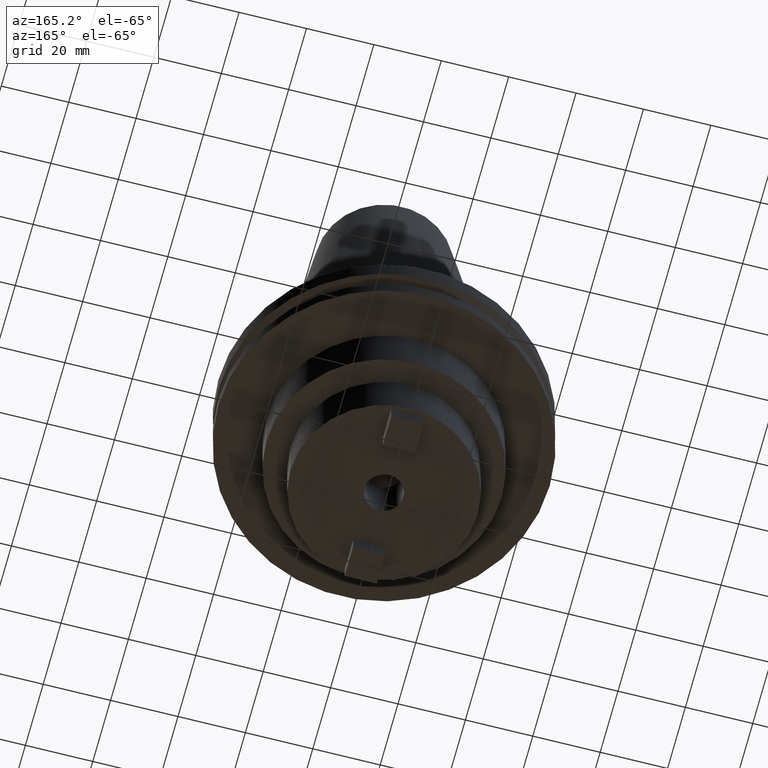
[diagram: clean part render]
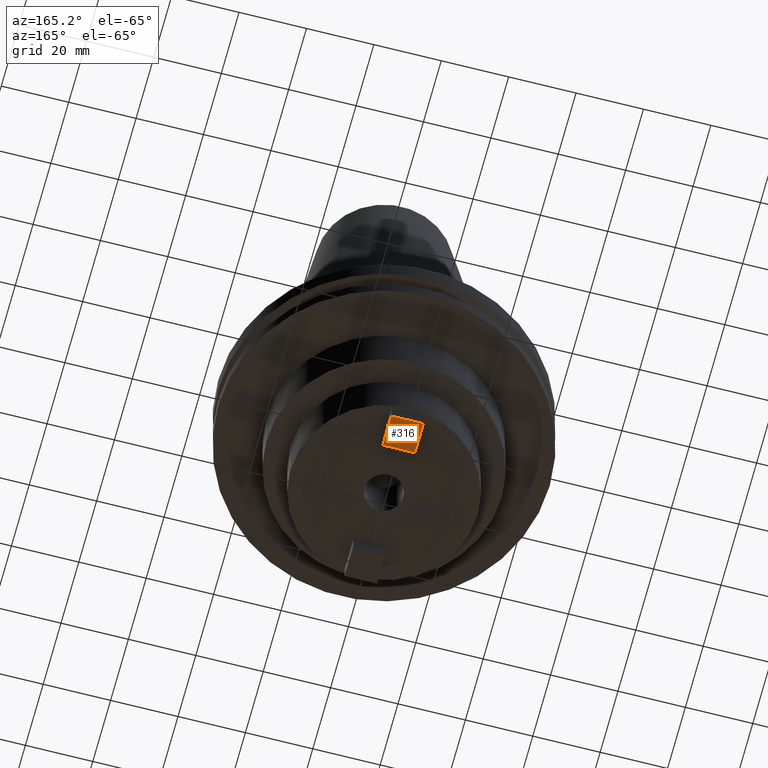
[diagram: same view with one face highlighted and labeled with its STEP entity id]
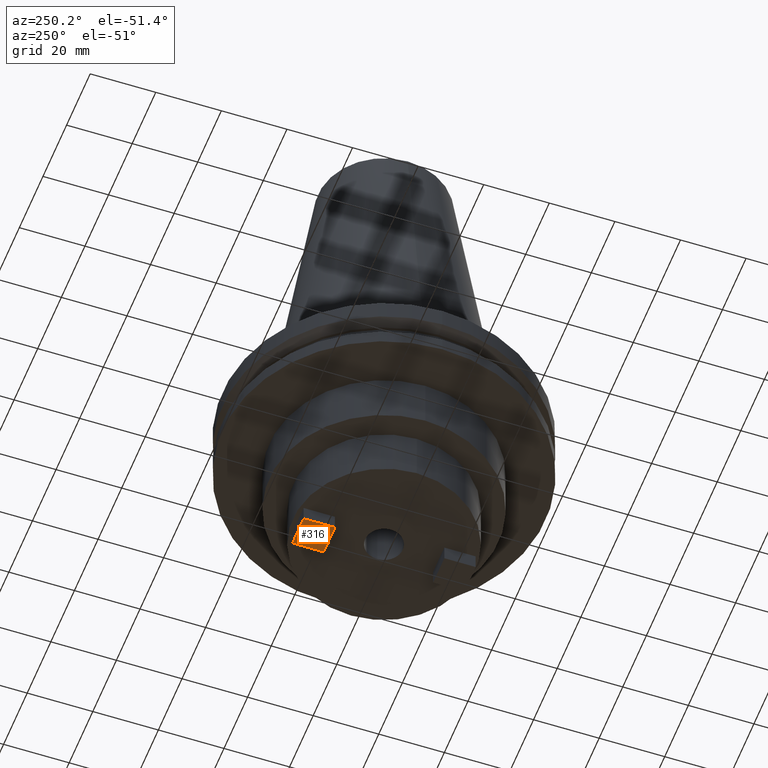
[diagram: same view with one face highlighted and labeled with its STEP entity id]
A machine part, auxiliary view. The second image highlights one B-rep face of the part: STEP entity #316.
A second angle (auxiliary view) of the same face is appended — the face is thin or edge-on in the first view.
In plain terms, the highlighted planar face has unit normal (0, 0, -1).
Its self-contained STEP definition (entity closure, byte-faithful):
#3 = EDGE_LOOP ( 'NONE', ( #956, #121, #147, #791 ) ) ;
#68 = VECTOR ( 'NONE', #242, 1000.000000000000000 ) ;
#71 = EDGE_CURVE ( 'NONE', #453, #524, #940, .T. ) ;
#91 = CARTESIAN_POINT ( 'NONE',  ( -4.762500000000017941, 26.20750000000002089, -55.70000000000000284 ) ) ;
#98 = DIRECTION ( 'NONE',  ( -1.000000000000000000, 3.642463991552348493E-16, 0.000000000000000000 ) ) ;
#104 = CARTESIAN_POINT ( 'NONE',  ( 4.762499999999981526, 26.20750000000001734, -55.70000000000000284 ) ) ;
#121 = ORIENTED_EDGE ( 'NONE', *, *, #394, .T. ) ;
#135 = EDGE_CURVE ( 'NONE', #220, #453, #432, .T. ) ;
#147 = ORIENTED_EDGE ( 'NONE', *, *, #329, .T. ) ;
#175 = VECTOR ( 'NONE', #495, 1000.000000000000000 ) ;
#181 = CARTESIAN_POINT ( 'NONE',  ( 4.762499999999986855, 16.68250000000001876, -55.70000000000000284 ) ) ;
#220 = VERTEX_POINT ( 'NONE', #288 ) ;
#228 = DIRECTION ( 'NONE',  ( -1.000000000000000000, 0.000000000000000000, 0.000000000000000000 ) ) ;
#242 = DIRECTION ( 'NONE',  ( 6.374311985216615162E-16, -1.000000000000000000, 0.000000000000000000 ) ) ;
#288 = CARTESIAN_POINT ( 'NONE',  ( 4.762499999999986855, 16.68250000000001876, -55.70000000000000284 ) ) ;
#301 = DIRECTION ( 'NONE',  ( 0.000000000000000000, 0.000000000000000000, -1.000000000000000000 ) ) ;
#316 = ADVANCED_FACE ( 'NONE', ( #968 ), #387, .T. ) ;
#329 = EDGE_CURVE ( 'NONE', #1063, #220, #452, .T. ) ;
#387 = PLANE ( 'NONE',  #613 ) ;
#394 = EDGE_CURVE ( 'NONE', #524, #1063, #812, .T. ) ;
#409 = VECTOR ( 'NONE', #1030, 1000.000000000000000 ) ;
#432 = LINE ( 'NONE', #181, #536 ) ;
#452 = LINE ( 'NONE', #699, #68 ) ;
#453 = VERTEX_POINT ( 'NONE', #727 ) ;
#495 = DIRECTION ( 'NONE',  ( 1.000000000000000000, -3.642463991552351451E-16, -0.000000000000000000 ) ) ;
#524 = VERTEX_POINT ( 'NONE', #535 ) ;
#535 = CARTESIAN_POINT ( 'NONE',  ( -4.762500000000017941, 26.20750000000002089, -55.70000000000000284 ) ) ;
#536 = VECTOR ( 'NONE', #98, 1000.000000000000000 ) ;
#613 = AXIS2_PLACEMENT_3D ( 'NONE', #973, #301, #228 ) ;
#699 = CARTESIAN_POINT ( 'NONE',  ( 4.762499999999981526, 26.20750000000001734, -55.70000000000000284 ) ) ;
#727 = CARTESIAN_POINT ( 'NONE',  ( -4.762500000000018829, 16.68250000000002231, -55.70000000000000284 ) ) ;
#791 = ORIENTED_EDGE ( 'NONE', *, *, #135, .T. ) ;
#812 = LINE ( 'NONE', #982, #175 ) ;
#940 = LINE ( 'NONE', #91, #409 ) ;
#956 = ORIENTED_EDGE ( 'NONE', *, *, #71, .T. ) ;
#968 = FACE_OUTER_BOUND ( 'NONE', #3, .T. ) ;
#973 = CARTESIAN_POINT ( 'NONE',  ( 0.000000000000000000, 0.000000000000000000, -55.70000000000000284 ) ) ;
#982 = CARTESIAN_POINT ( 'NONE',  ( 4.762499999999981526, 26.20750000000001734, -55.70000000000000284 ) ) ;
#1030 = DIRECTION ( 'NONE',  ( 9.106159978880878627E-17, 1.000000000000000000, -0.000000000000000000 ) ) ;
#1063 = VERTEX_POINT ( 'NONE', #104 ) ;